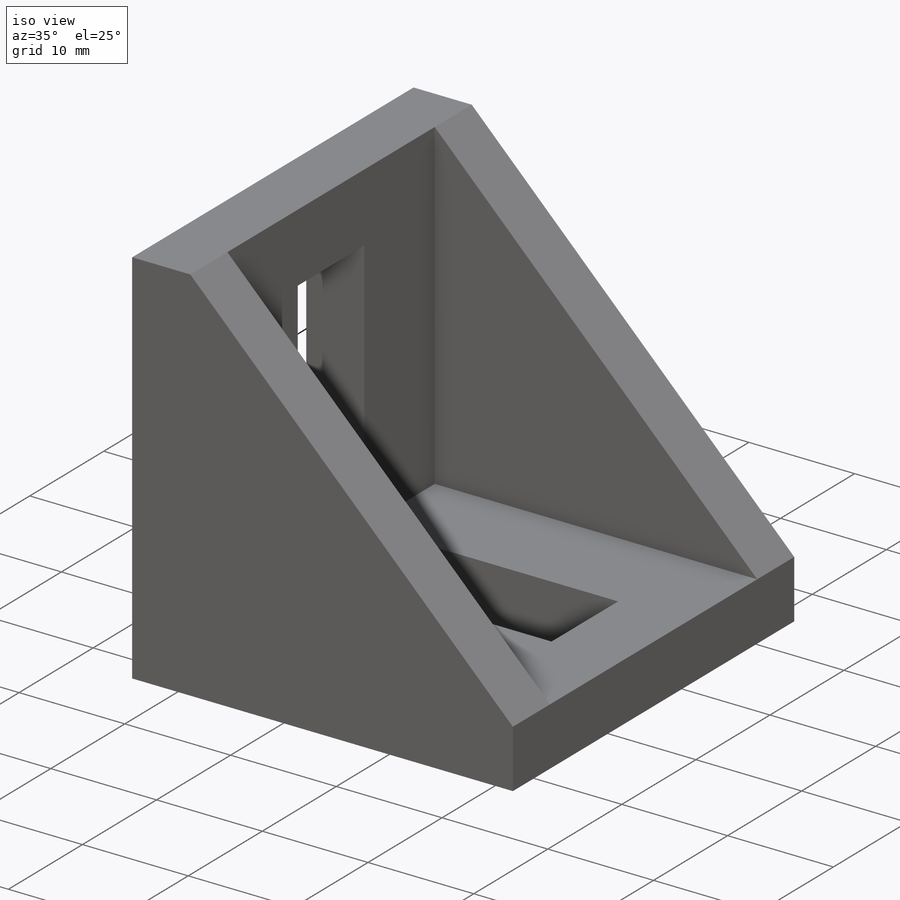
[diagram: iso view]
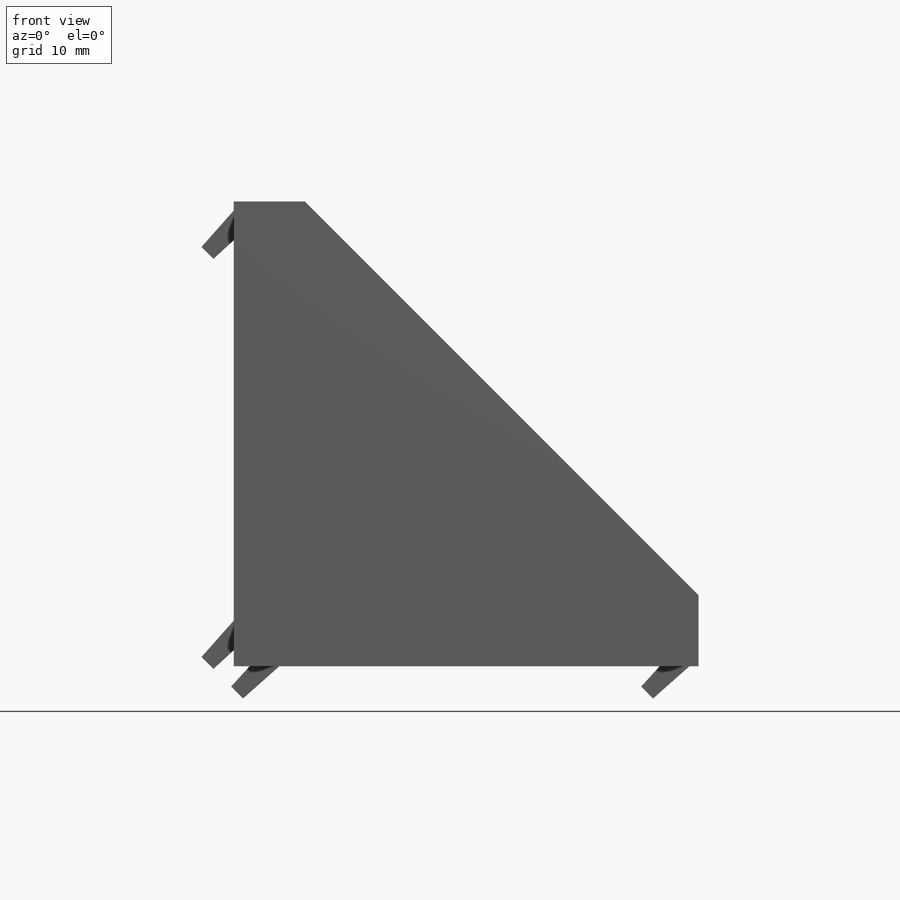
[diagram: front view]
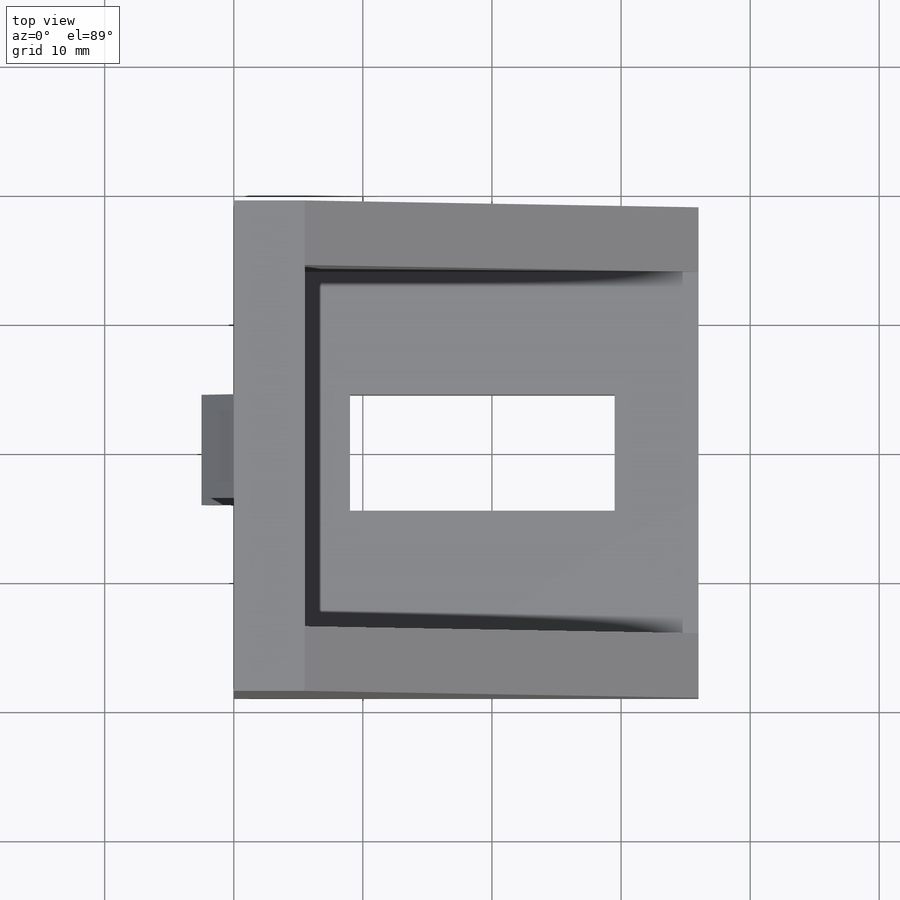
[diagram: top view]
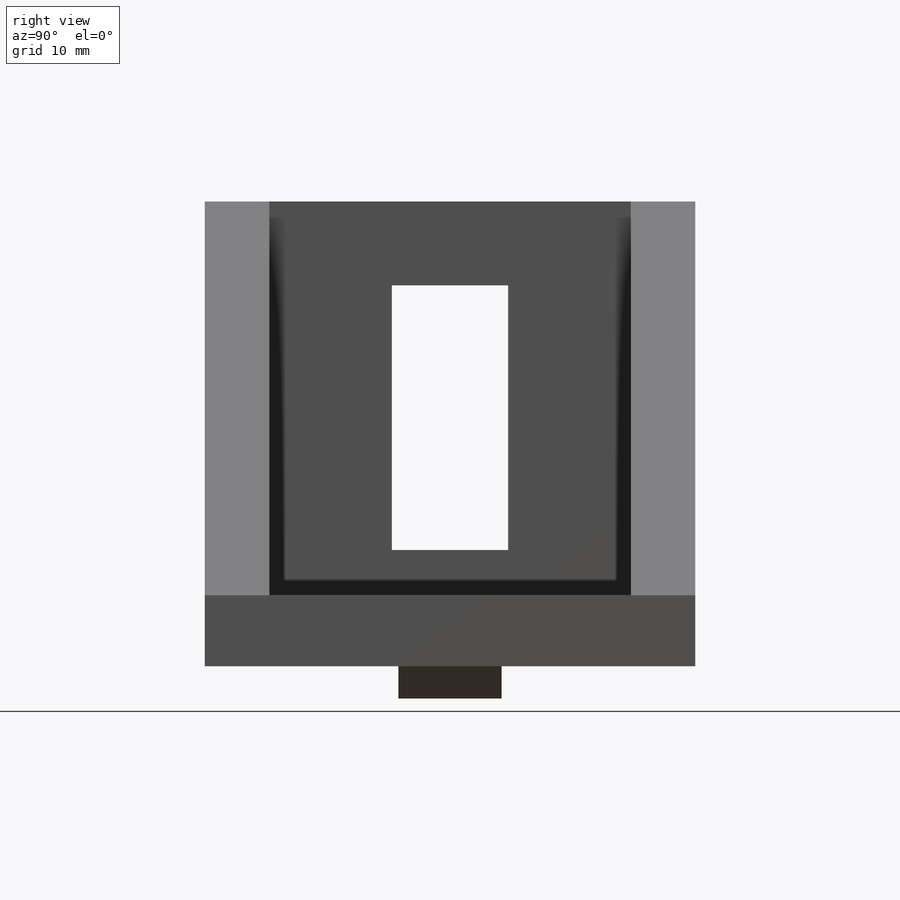
[diagram: right view]
SOLIDWORKS PART (.sldprt)
format: sldprt  version: not decoded by parser v0  size: 247,808 bytes
history: native  units: mm
features: sketch x4, extrude x2, cut_extrude x2, material x1 (+15 scaffold rows collapsed)
feature tree (24):
  scaffold x15  (default folders/planes/origin — collapsed)
  material  "Material <not specified>"
  sketch  "Sketch1"  dims[c1.E=3.175mm c1.D=4.7625mm c1.C=36.0mm c1.B=36.0mm c1.D4=4.7625mm c2.D=3.0mm c3.D=5.5mm c3.D1=0.0mm]
  extrude  "Boss-Extrude1"  Depth=38mm A=38mm
  sketch  "Sketch2"
  cut_extrude  "Cut-Extrude1"  Depth=28mm
  sketch  "Sketch3"  dims[c1.D1=29.5mm c1.D2=7.0mm c1.D3=29.5mm c1.D4=7.0mm c2.D2=20.5mm c2.D4=20.5mm]
  cut_extrude  "Cut-Extrude2"  Depth=9mm
  sketch  "Sketch4"  dims[c1.D1=~2.076331mm c2.D1=6.0deg c2.D2=5.0mm c2.D3=~0.787761mm c3.D3=3.0deg c3.D1=~1.816868mm c4.D1=6.0deg c4.D4=18.0mm c5.D4=45.0deg c5.D2=5.0mm c5.D1=1.7mm c5.D3=~0.898633mm c6.D3=6.0deg c7.D3=~2.783583mm c8.D3=6.0deg c8.D4=~1.600105mm c8.D5=0.7mm c8.D6=2.5mm c8.D7=~1.244463mm]
  extrude  "Boss-Extrude2"  Depth=8mm
decode coverage: 7 of 8 modeling features carry decoded parameters
note: ~ marks probable driven/reference dimensions
note: suppression state not decoded; provenance and decode notes live in map.json
